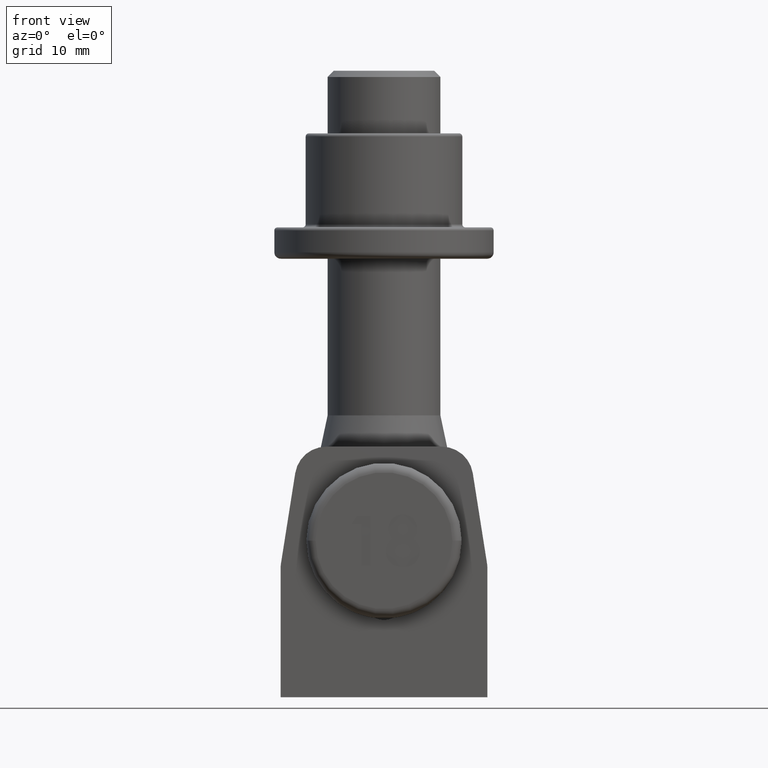
[diagram: clean part render]
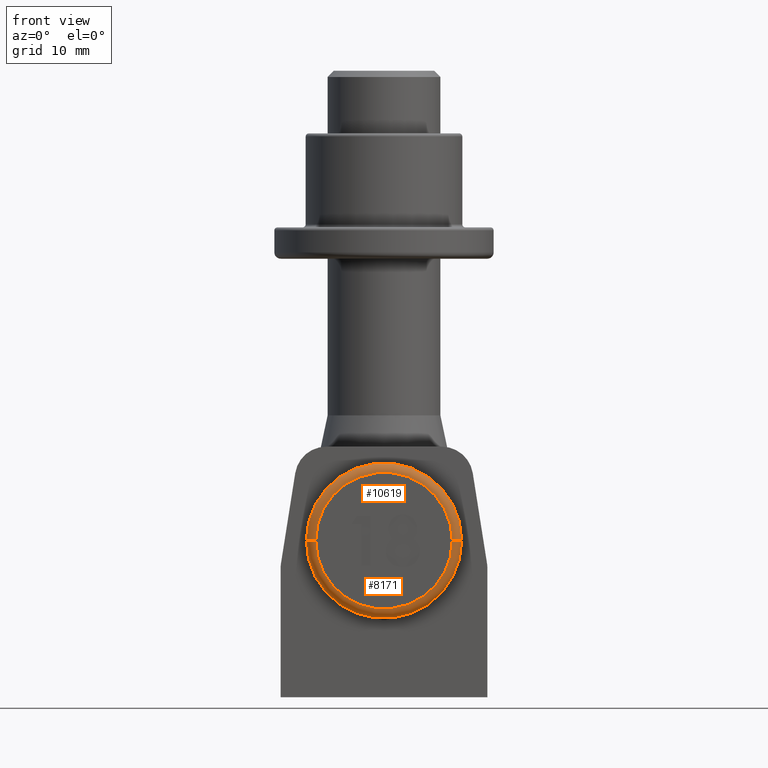
[diagram: same view with one multi-face feature highlighted, each face labeled with its STEP entity id]
A machine part, front view. The highlighted faces form ONE feature: a constant-radius fillet chain: 2 tangent blend faces with common blend radius 1.5 mm. The faces share edges in the B-rep.
Their STEP definitions:
[1] entity #10619 (Torus):
#177 = EDGE_LOOP ( 'NONE', ( #4090, #3828, #5547, #1980 ) ) ;
#1807 = EDGE_CURVE ( 'NONE', #8409, #8768, #14136, .T. ) ;
#1847 = DIRECTION ( 'NONE',  ( 4.221290891699222700E-017, 1.000000000000000000, -0.0000000000000000000 ) ) ;
#1886 = DIRECTION ( 'NONE',  ( -0.0000000000000000000, 0.0000000000000000000, -1.000000000000000000 ) ) ;
#1980 = ORIENTED_EDGE ( 'NONE', *, *, #1807, .F. ) ;
#3288 = DIRECTION ( 'NONE',  ( -1.000000000000000000, 3.497426362856465700E-017, 0.0000000000000000000 ) ) ;
#3565 = EDGE_CURVE ( 'NONE', #8768, #14865, #12944, .T. ) ;
#3607 = CARTESIAN_POINT ( 'NONE',  ( -10.90000000000000000, 4.601207071952152500E-016, 0.0000000000000000000 ) ) ;
#3755 = EDGE_CURVE ( 'NONE', #8751, #14865, #9861, .T. ) ;
#3828 = ORIENTED_EDGE ( 'NONE', *, *, #3755, .T. ) ;
#4090 = ORIENTED_EDGE ( 'NONE', *, *, #5844, .F. ) ;
#4136 = DIRECTION ( 'NONE',  ( -1.224646799147353200E-016, 5.169590378789329700E-033, 1.000000000000000000 ) ) ;
#4361 = DIRECTION ( 'NONE',  ( -1.000000000000000000, 0.0000000000000000000, 0.0000000000000000000 ) ) ;
#5044 = CARTESIAN_POINT ( 'NONE',  ( 6.331936337548789300E-017, 1.500000000000001300, 0.0000000000000000000 ) ) ;
#5254 = DIRECTION ( 'NONE',  ( -4.221290891699222700E-017, -1.000000000000000000, 0.0000000000000000000 ) ) ;
#5364 = DIRECTION ( 'NONE',  ( -1.000000000000000000, 4.221290891699222100E-017, 0.0000000000000000000 ) ) ;
#5547 = ORIENTED_EDGE ( 'NONE', *, *, #3565, .F. ) ;
#5844 = EDGE_CURVE ( 'NONE', #8751, #8409, #15177, .T. ) ;
#6657 = CARTESIAN_POINT ( 'NONE',  ( 10.90000000000000000, 1.500000000000000900, 1.334865011070615000E-015 ) ) ;
#7288 = AXIS2_PLACEMENT_3D ( 'NONE', #15514, #1847, #3288 ) ;
#7712 = DIRECTION ( 'NONE',  ( -1.000000000000000000, 4.221290891699222100E-017, 0.0000000000000000000 ) ) ;
#7977 = FACE_OUTER_BOUND ( 'NONE', #177, .T. ) ;
#8409 = VERTEX_POINT ( 'NONE', #3607 ) ;
#8751 = VERTEX_POINT ( 'NONE', #10705 ) ;
#8768 = VERTEX_POINT ( 'NONE', #9348 ) ;
#9189 = DIRECTION ( 'NONE',  ( 1.000000000000000000, 0.0000000000000000000, 1.224646799147353500E-016 ) ) ;
#9348 = CARTESIAN_POINT ( 'NONE',  ( -12.40000000000000000, 1.500000000000001800, 0.0000000000000000000 ) ) ;
#9861 = CIRCLE ( 'NONE', #12225, 1.499999999999999600 ) ;
#9896 = AXIS2_PLACEMENT_3D ( 'NONE', #5044, #12718, #5364 ) ;
#10619 = ADVANCED_FACE ( 'NONE', ( #7977 ), #11651, .T. ) ;
#10705 = CARTESIAN_POINT ( 'NONE',  ( 10.90000000000000000, -4.601207071952153500E-016, 1.426713521006666400E-015 ) ) ;
#11193 = AXIS2_PLACEMENT_3D ( 'NONE', #11730, #1886, #4361 ) ;
#11558 = CARTESIAN_POINT ( 'NONE',  ( 12.40000000000000000, 1.500000000000000900, 1.518562030942718000E-015 ) ) ;
#11651 = TOROIDAL_SURFACE ( 'NONE', #9896, 10.90000000000000000, 1.500000000000000000 ) ;
#11730 = CARTESIAN_POINT ( 'NONE',  ( -10.90000000000000000, 1.500000000000001800, 0.0000000000000000000 ) ) ;
#12225 = AXIS2_PLACEMENT_3D ( 'NONE', #6657, #4136, #9189 ) ;
#12607 = CARTESIAN_POINT ( 'NONE',  ( -5.777789833161707600E-031, 0.0000000000000000000, 0.0000000000000000000 ) ) ;
#12718 = DIRECTION ( 'NONE',  ( 4.221290891699222700E-017, 1.000000000000000000, -0.0000000000000000000 ) ) ;
#12944 = CIRCLE ( 'NONE', #7288, 12.40000000000000000 ) ;
#12962 = AXIS2_PLACEMENT_3D ( 'NONE', #12607, #5254, #7712 ) ;
#14136 = CIRCLE ( 'NONE', #11193, 1.499999999999999600 ) ;
#14865 = VERTEX_POINT ( 'NONE', #11558 ) ;
#15177 = CIRCLE ( 'NONE', #12962, 10.90000000000000000 ) ;
#15514 = CARTESIAN_POINT ( 'NONE',  ( 6.331936337548789300E-017, 1.500000000000001300, 0.0000000000000000000 ) ) ;
[2] entity #8171 (Torus):
#288 = EDGE_LOOP ( 'NONE', ( #14147, #8085, #13668, #12905 ) ) ;
#1540 = CARTESIAN_POINT ( 'NONE',  ( 6.331936337548789300E-017, 1.500000000000001300, 0.0000000000000000000 ) ) ;
#1807 = EDGE_CURVE ( 'NONE', #8409, #8768, #14136, .T. ) ;
#1886 = DIRECTION ( 'NONE',  ( -0.0000000000000000000, 0.0000000000000000000, -1.000000000000000000 ) ) ;
#3607 = CARTESIAN_POINT ( 'NONE',  ( -10.90000000000000000, 4.601207071952152500E-016, 0.0000000000000000000 ) ) ;
#3755 = EDGE_CURVE ( 'NONE', #8751, #14865, #9861, .T. ) ;
#4079 = EDGE_CURVE ( 'NONE', #8409, #8751, #12335, .T. ) ;
#4136 = DIRECTION ( 'NONE',  ( -1.224646799147353200E-016, 5.169590378789329700E-033, 1.000000000000000000 ) ) ;
#4361 = DIRECTION ( 'NONE',  ( -1.000000000000000000, 0.0000000000000000000, 0.0000000000000000000 ) ) ;
#4601 = FACE_OUTER_BOUND ( 'NONE', #288, .T. ) ;
#4884 = CARTESIAN_POINT ( 'NONE',  ( -5.777789833161707600E-031, 0.0000000000000000000, 0.0000000000000000000 ) ) ;
#4903 = DIRECTION ( 'NONE',  ( -1.000000000000000000, 3.497426362856465700E-017, 0.0000000000000000000 ) ) ;
#5341 = CIRCLE ( 'NONE', #7310, 12.40000000000000000 ) ;
#6657 = CARTESIAN_POINT ( 'NONE',  ( 10.90000000000000000, 1.500000000000000900, 1.334865011070615000E-015 ) ) ;
#6692 = DIRECTION ( 'NONE',  ( -1.000000000000000000, 4.221290891699222100E-017, 0.0000000000000000000 ) ) ;
#7310 = AXIS2_PLACEMENT_3D ( 'NONE', #10984, #15838, #4903 ) ;
#7393 = EDGE_CURVE ( 'NONE', #14865, #8768, #5341, .T. ) ;
#8085 = ORIENTED_EDGE ( 'NONE', *, *, #4079, .F. ) ;
#8171 = ADVANCED_FACE ( 'NONE', ( #4601 ), #12089, .T. ) ;
#8409 = VERTEX_POINT ( 'NONE', #3607 ) ;
#8751 = VERTEX_POINT ( 'NONE', #10705 ) ;
#8768 = VERTEX_POINT ( 'NONE', #9348 ) ;
#9189 = DIRECTION ( 'NONE',  ( 1.000000000000000000, 0.0000000000000000000, 1.224646799147353500E-016 ) ) ;
#9348 = CARTESIAN_POINT ( 'NONE',  ( -12.40000000000000000, 1.500000000000001800, 0.0000000000000000000 ) ) ;
#9763 = AXIS2_PLACEMENT_3D ( 'NONE', #4884, #10966, #13551 ) ;
#9861 = CIRCLE ( 'NONE', #12225, 1.499999999999999600 ) ;
#10203 = DIRECTION ( 'NONE',  ( 4.221290891699222700E-017, 1.000000000000000000, -0.0000000000000000000 ) ) ;
#10705 = CARTESIAN_POINT ( 'NONE',  ( 10.90000000000000000, -4.601207071952153500E-016, 1.426713521006666400E-015 ) ) ;
#10966 = DIRECTION ( 'NONE',  ( -4.221290891699222700E-017, -1.000000000000000000, 0.0000000000000000000 ) ) ;
#10984 = CARTESIAN_POINT ( 'NONE',  ( 6.331936337548789300E-017, 1.500000000000001300, 0.0000000000000000000 ) ) ;
#11193 = AXIS2_PLACEMENT_3D ( 'NONE', #11730, #1886, #4361 ) ;
#11558 = CARTESIAN_POINT ( 'NONE',  ( 12.40000000000000000, 1.500000000000000900, 1.518562030942718000E-015 ) ) ;
#11730 = CARTESIAN_POINT ( 'NONE',  ( -10.90000000000000000, 1.500000000000001800, 0.0000000000000000000 ) ) ;
#12089 = TOROIDAL_SURFACE ( 'NONE', #13785, 10.90000000000000000, 1.500000000000000000 ) ;
#12225 = AXIS2_PLACEMENT_3D ( 'NONE', #6657, #4136, #9189 ) ;
#12335 = CIRCLE ( 'NONE', #9763, 10.90000000000000000 ) ;
#12905 = ORIENTED_EDGE ( 'NONE', *, *, #7393, .F. ) ;
#13551 = DIRECTION ( 'NONE',  ( -1.000000000000000000, 4.221290891699222100E-017, 0.0000000000000000000 ) ) ;
#13668 = ORIENTED_EDGE ( 'NONE', *, *, #1807, .T. ) ;
#13785 = AXIS2_PLACEMENT_3D ( 'NONE', #1540, #10203, #6692 ) ;
#14136 = CIRCLE ( 'NONE', #11193, 1.499999999999999600 ) ;
#14147 = ORIENTED_EDGE ( 'NONE', *, *, #3755, .F. ) ;
#14865 = VERTEX_POINT ( 'NONE', #11558 ) ;
#15838 = DIRECTION ( 'NONE',  ( 4.221290891699222700E-017, 1.000000000000000000, -0.0000000000000000000 ) ) ;